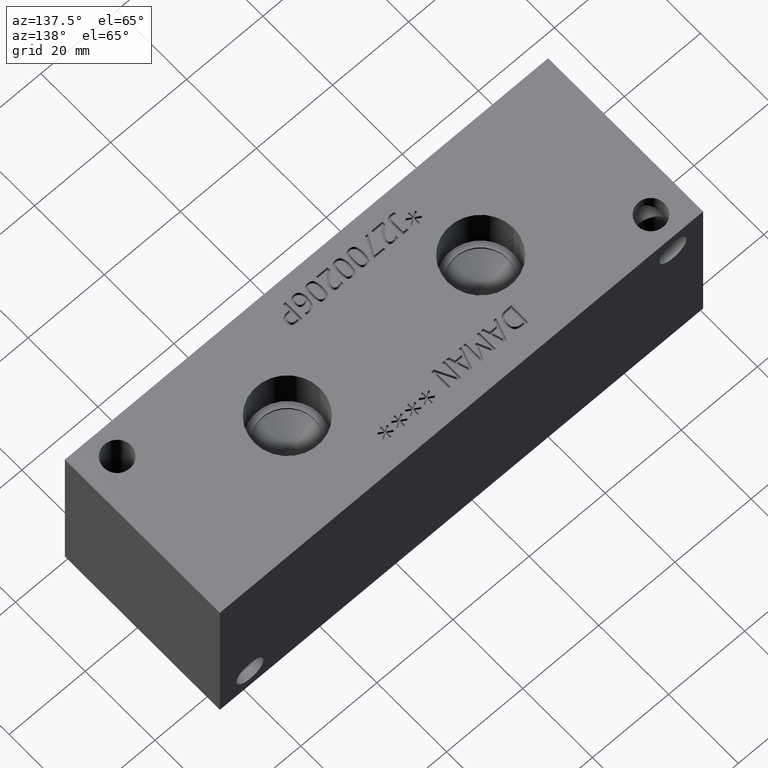
[diagram: clean part render]
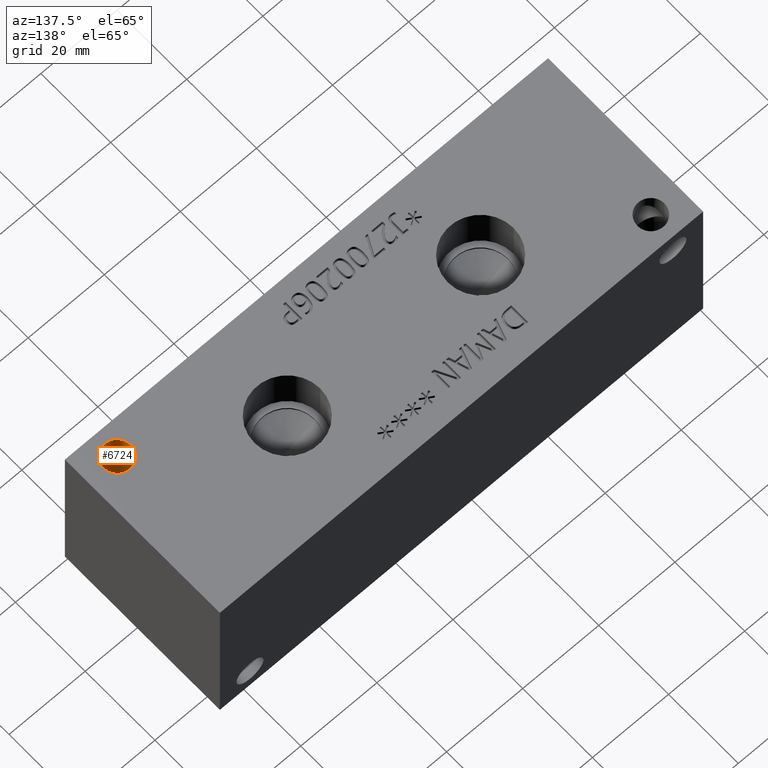
[diagram: same view with one face highlighted and labeled with its STEP entity id]
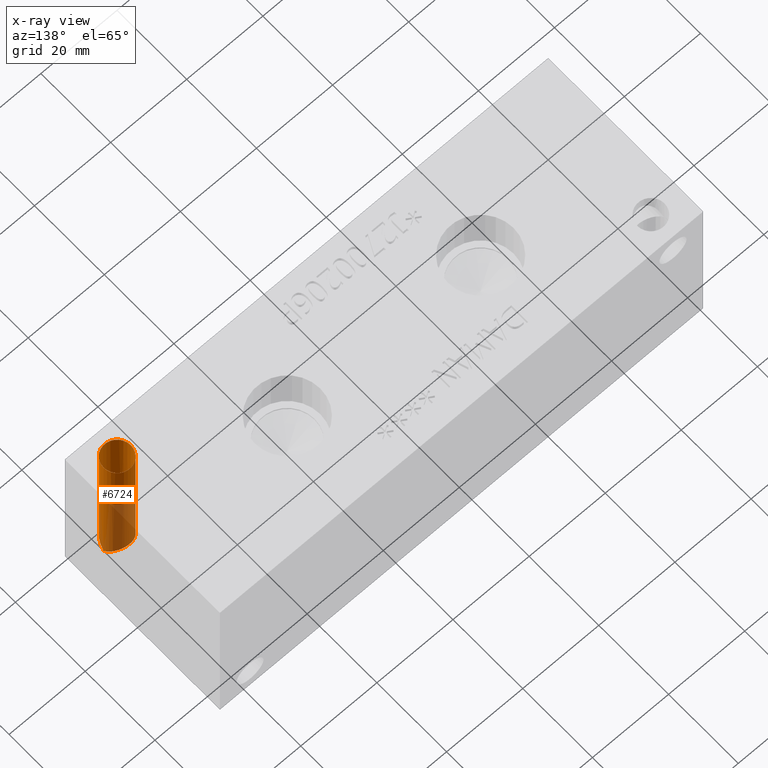
[diagram: x-ray of the same camera — body ghosted, the highlighted face saturated]
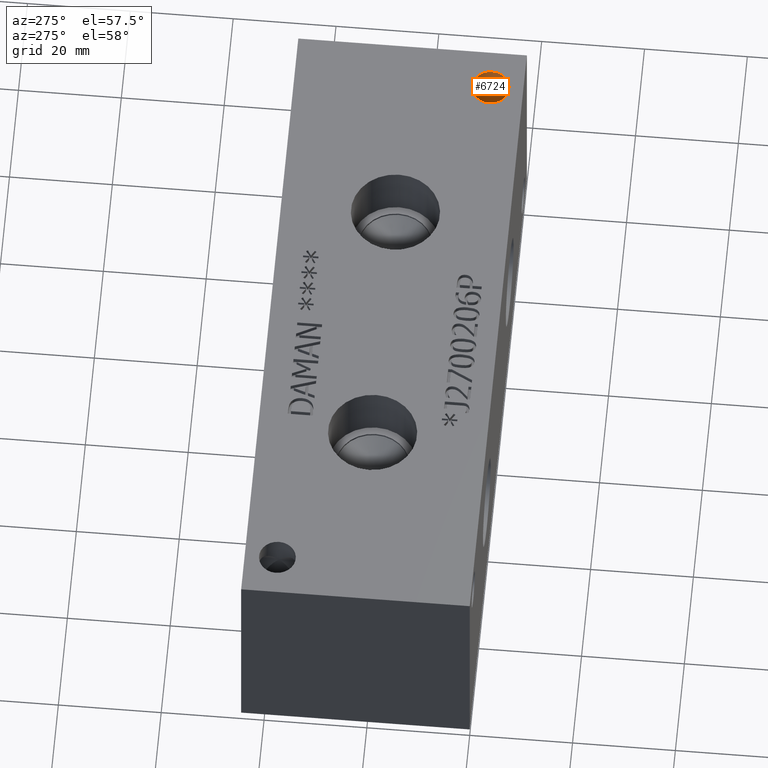
[diagram: same view with one face highlighted and labeled with its STEP entity id]
A machine part, auxiliary view. The second image highlights one B-rep face of the part: STEP entity #6724.
The next image is the same camera in x-ray: the body ghosted, the highlighted face saturated — about 38% of this face is hidden behind the body in this view.
A second angle (auxiliary view) of the same face is appended — the face is thin or edge-on in the first view.
In plain terms, the highlighted cylindrical surface (bore or boss wall) has radius 3.5687 mm, axis along (0, 0, 1).
Its self-contained STEP definition (entity closure, byte-faithful):
#14=ELLIPSE('',#7003,5.04690394004086,3.5687);
#17=ELLIPSE('',#7007,5.04690394004086,3.5687);
#28=CYLINDRICAL_SURFACE('',#7009,3.5687);
#48=CIRCLE('',#6831,3.5687);
#49=CIRCLE('',#6832,3.5687);
#677=FACE_OUTER_BOUND('',#1050,.T.);
#1050=EDGE_LOOP('',(#5875,#5876,#5877,#5878,#5879,#5880));
#1733=LINE('',#11384,#2400);
#2400=VECTOR('',#8201,3.5687);
#3032=VERTEX_POINT('',#10649);
#3033=VERTEX_POINT('',#10650);
#3202=VERTEX_POINT('',#11372);
#3203=VERTEX_POINT('',#11374);
#3798=EDGE_CURVE('',#3032,#3033,#48,.T.);
#3799=EDGE_CURVE('',#3033,#3032,#49,.T.);
#4104=EDGE_CURVE('',#3203,#3202,#14,.T.);
#4107=EDGE_CURVE('',#3202,#3203,#17,.T.);
#4110=EDGE_CURVE('',#3033,#3202,#1733,.T.);
#5875=ORIENTED_EDGE('',*,*,#3798,.F.);
#5876=ORIENTED_EDGE('',*,*,#3799,.F.);
#5877=ORIENTED_EDGE('',*,*,#4110,.T.);
#5878=ORIENTED_EDGE('',*,*,#4107,.T.);
#5879=ORIENTED_EDGE('',*,*,#4104,.T.);
#5880=ORIENTED_EDGE('',*,*,#4110,.F.);
#6724=ADVANCED_FACE('',(#677),#28,.F.);
#6831=AXIS2_PLACEMENT_3D('',#10651,#7572,#7573);
#6832=AXIS2_PLACEMENT_3D('',#10652,#7574,#7575);
#7003=AXIS2_PLACEMENT_3D('',#11375,#8186,#8187);
#7007=AXIS2_PLACEMENT_3D('',#11379,#8194,#8195);
#7009=AXIS2_PLACEMENT_3D('',#11383,#8199,#8200);
#7572=DIRECTION('center_axis',(0.,0.,-1.));
#7573=DIRECTION('ref_axis',(1.,0.,0.));
#7574=DIRECTION('center_axis',(0.,0.,-1.));
#7575=DIRECTION('ref_axis',(1.,0.,0.));
#8186=DIRECTION('center_axis',(0.,-0.707106781186548,-0.707106781186547));
#8187=DIRECTION('ref_axis',(0.,-0.707106781186547,0.707106781186548));
#8194=DIRECTION('center_axis',(0.,0.707106781186548,-0.707106781186547));
#8195=DIRECTION('ref_axis',(0.,0.707106781186547,0.707106781186548));
#8199=DIRECTION('center_axis',(0.,0.,1.));
#8200=DIRECTION('ref_axis',(1.,0.,0.));
#8201=DIRECTION('',(0.,0.,-1.));
#10649=CARTESIAN_POINT('',(122.6439,6.35,44.45));
#10650=CARTESIAN_POINT('',(115.5065,6.35,44.45));
#10651=CARTESIAN_POINT('Origin',(119.0752,6.35,44.45));
#10652=CARTESIAN_POINT('Origin',(119.0752,6.35,44.45));
#11372=CARTESIAN_POINT('',(115.5065,6.35,6.35));
#11374=CARTESIAN_POINT('',(122.6439,6.35,6.35));
#11375=CARTESIAN_POINT('Origin',(119.0752,6.35,6.35));
#11379=CARTESIAN_POINT('Origin',(119.0752,6.35,6.35));
#11383=CARTESIAN_POINT('Origin',(119.0752,6.35,-97.2560513880759));
#11384=CARTESIAN_POINT('',(115.5065,6.35,-97.2560513880759));